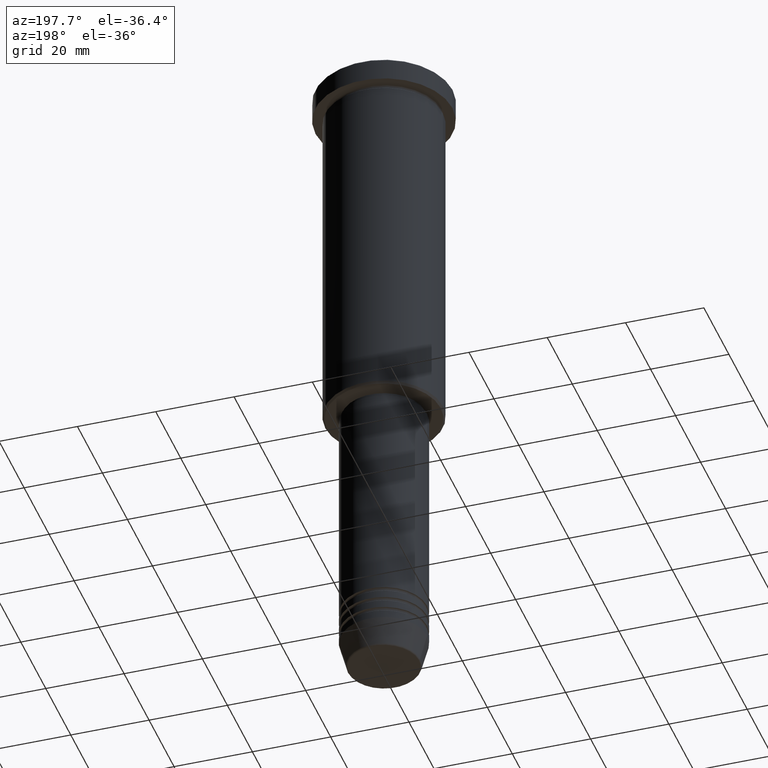
[diagram: clean part render]
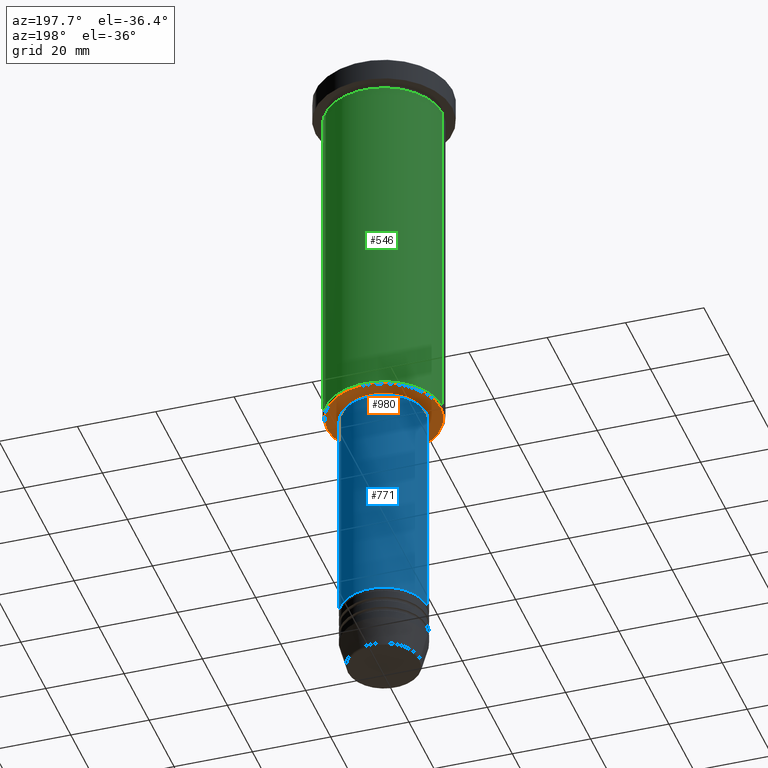
[diagram: same view with three faces highlighted in distinct colors, each labeled with its STEP entity id]
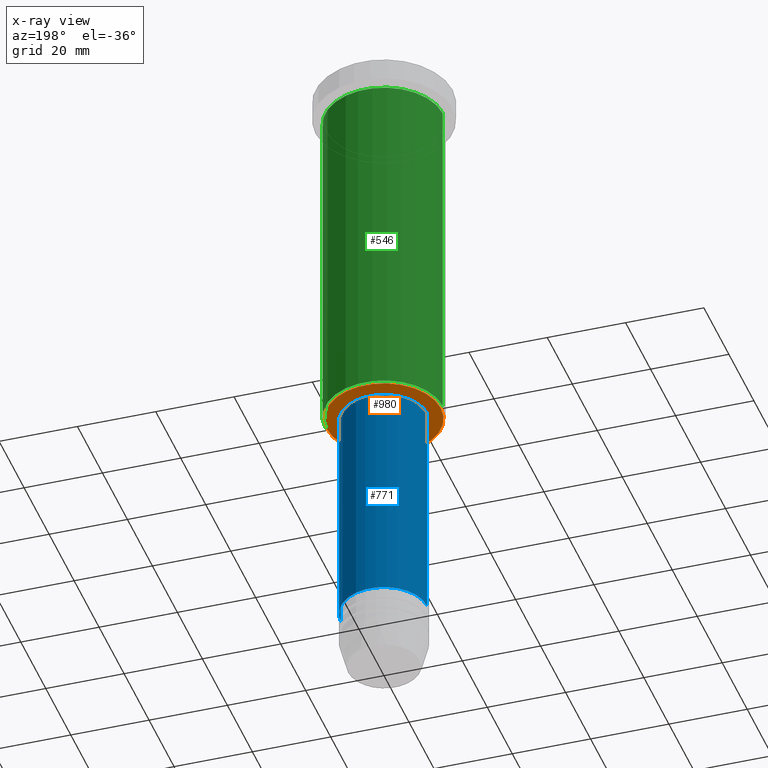
[diagram: x-ray of the same camera — body ghosted, the three highlighted faces saturated]
A machine part, auxiliary view with three faces highlighted in distinct colors.
The next image is the same camera in x-ray (body ghosted, the three faces saturated) — at least one of them is partly hidden behind the body in this view.
Their STEP definitions:

[orange] entity #980 — the highlighted planar face has unit normal (0, 0, -1).
#1 = EDGE_LOOP ( 'NONE', ( #672, #662 ) ) ;
#12 = CARTESIAN_POINT ( 'NONE',  ( 0.000000000000000000, 15.00000000000000000, -96.00000000000000000 ) ) ;
#38 = EDGE_CURVE ( 'NONE', #942, #579, #51, .T. ) ;
#42 = FACE_OUTER_BOUND ( 'NONE', #1, .T. ) ;
#51 = CIRCLE ( 'NONE', #755, 10.49999999999999822 ) ;
#94 = DIRECTION ( 'NONE',  ( 1.000000000000000000, 0.000000000000000000, 0.000000000000000000 ) ) ;
#95 = CARTESIAN_POINT ( 'NONE',  ( 14.50000000000001066, 0.000000000000000000, -96.00000000000000000 ) ) ;
#101 = DIRECTION ( 'NONE',  ( -0.000000000000000000, -0.000000000000000000, 1.000000000000000000 ) ) ;
#176 = EDGE_CURVE ( 'NONE', #661, #357, #504, .T. ) ;
#247 = EDGE_CURVE ( 'NONE', #357, #661, #794, .T. ) ;
#277 = AXIS2_PLACEMENT_3D ( 'NONE', #12, #1030, #489 ) ;
#316 = CARTESIAN_POINT ( 'NONE',  ( 0.000000000000000000, 0.000000000000000000, -96.00000000000000000 ) ) ;
#320 = DIRECTION ( 'NONE',  ( -0.000000000000000000, -0.000000000000000000, 1.000000000000000000 ) ) ;
#325 = AXIS2_PLACEMENT_3D ( 'NONE', #812, #649, #998 ) ;
#357 = VERTEX_POINT ( 'NONE', #95 ) ;
#377 = CARTESIAN_POINT ( 'NONE',  ( -14.50000000000001066, 1.806354028742346591E-15, -96.00000000000000000 ) ) ;
#388 = DIRECTION ( 'NONE',  ( -1.000000000000000000, 0.000000000000000000, 0.000000000000000000 ) ) ;
#394 = DIRECTION ( 'NONE',  ( 1.000000000000000000, 0.000000000000000000, 0.000000000000000000 ) ) ;
#489 = DIRECTION ( 'NONE',  ( -1.000000000000000000, 0.000000000000000000, -0.000000000000000000 ) ) ;
#504 = CIRCLE ( 'NONE', #325, 14.50000000000001066 ) ;
#510 = CARTESIAN_POINT ( 'NONE',  ( 0.000000000000000000, 0.000000000000000000, -96.00000000000000000 ) ) ;
#521 = AXIS2_PLACEMENT_3D ( 'NONE', #510, #320, #394 ) ;
#579 = VERTEX_POINT ( 'NONE', #1090 ) ;
#649 = DIRECTION ( 'NONE',  ( 0.000000000000000000, 0.000000000000000000, -1.000000000000000000 ) ) ;
#661 = VERTEX_POINT ( 'NONE', #377 ) ;
#662 = ORIENTED_EDGE ( 'NONE', *, *, #176, .T. ) ;
#672 = ORIENTED_EDGE ( 'NONE', *, *, #247, .T. ) ;
#673 = ORIENTED_EDGE ( 'NONE', *, *, #38, .T. ) ;
#682 = ORIENTED_EDGE ( 'NONE', *, *, #1149, .T. ) ;
#755 = AXIS2_PLACEMENT_3D ( 'NONE', #1086, #101, #94 ) ;
#767 = FACE_BOUND ( 'NONE', #1041, .T. ) ;
#776 = CIRCLE ( 'NONE', #521, 10.49999999999999822 ) ;
#794 = CIRCLE ( 'NONE', #1103, 14.50000000000001066 ) ;
#812 = CARTESIAN_POINT ( 'NONE',  ( 0.000000000000000000, 0.000000000000000000, -96.00000000000000000 ) ) ;
#873 = DIRECTION ( 'NONE',  ( 0.000000000000000000, 0.000000000000000000, -1.000000000000000000 ) ) ;
#942 = VERTEX_POINT ( 'NONE', #1048 ) ;
#980 = ADVANCED_FACE ( 'NONE', ( #42, #767 ), #1177, .T. ) ;
#998 = DIRECTION ( 'NONE',  ( -1.000000000000000000, 0.000000000000000000, 0.000000000000000000 ) ) ;
#1030 = DIRECTION ( 'NONE',  ( 0.000000000000000000, 0.000000000000000000, -1.000000000000000000 ) ) ;
#1041 = EDGE_LOOP ( 'NONE', ( #682, #673 ) ) ;
#1048 = CARTESIAN_POINT ( 'NONE',  ( -10.49999999999999822, 1.285879139104720633E-15, -96.00000000000000000 ) ) ;
#1086 = CARTESIAN_POINT ( 'NONE',  ( 0.000000000000000000, 0.000000000000000000, -96.00000000000000000 ) ) ;
#1090 = CARTESIAN_POINT ( 'NONE',  ( 10.49999999999999822, 0.000000000000000000, -96.00000000000000000 ) ) ;
#1103 = AXIS2_PLACEMENT_3D ( 'NONE', #316, #873, #388 ) ;
#1149 = EDGE_CURVE ( 'NONE', #579, #942, #776, .T. ) ;
#1177 = PLANE ( 'NONE',  #277 ) ;

[blue] entity #771 — the highlighted cylindrical surface (partial cylindrical patch) has radius 11 mm, axis along (-0, -0, 1).
#4 = ORIENTED_EDGE ( 'NONE', *, *, #219, .F. ) ;
#21 = CARTESIAN_POINT ( 'NONE',  ( 0.000000000000000000, 0.000000000000000000, -97.00000000000000000 ) ) ;
#47 = VECTOR ( 'NONE', #697, 1000.000000000000000 ) ;
#87 = CIRCLE ( 'NONE', #240, 11.00000000000000000 ) ;
#100 = DIRECTION ( 'NONE',  ( -0.000000000000000000, -0.000000000000000000, 1.000000000000000000 ) ) ;
#110 = DIRECTION ( 'NONE',  ( -0.000000000000000000, -0.000000000000000000, 1.000000000000000000 ) ) ;
#202 = DIRECTION ( 'NONE',  ( 1.000000000000000000, 0.000000000000000000, 0.000000000000000000 ) ) ;
#216 = CARTESIAN_POINT ( 'NONE',  ( 0.000000000000000000, 0.000000000000000000, 0.000000000000000000 ) ) ;
#219 = EDGE_CURVE ( 'NONE', #289, #361, #565, .T. ) ;
#235 = CARTESIAN_POINT ( 'NONE',  ( -11.00000000000000000, 1.347111479062088405E-15, 0.000000000000000000 ) ) ;
#240 = AXIS2_PLACEMENT_3D ( 'NONE', #21, #100, #202 ) ;
#289 = VERTEX_POINT ( 'NONE', #908 ) ;
#332 = LINE ( 'NONE', #235, #47 ) ;
#353 = ORIENTED_EDGE ( 'NONE', *, *, #734, .F. ) ;
#361 = VERTEX_POINT ( 'NONE', #915 ) ;
#496 = VERTEX_POINT ( 'NONE', #1142 ) ;
#538 = AXIS2_PLACEMENT_3D ( 'NONE', #1087, #1112, #841 ) ;
#565 = LINE ( 'NONE', #764, #1140 ) ;
#697 = DIRECTION ( 'NONE',  ( -0.000000000000000000, -0.000000000000000000, 1.000000000000000000 ) ) ;
#734 = EDGE_CURVE ( 'NONE', #361, #496, #87, .T. ) ;
#764 = CARTESIAN_POINT ( 'NONE',  ( 11.00000000000000000, 0.000000000000000000, 0.000000000000000000 ) ) ;
#771 = ADVANCED_FACE ( 'NONE', ( #1042 ), #955, .T. ) ;
#773 = AXIS2_PLACEMENT_3D ( 'NONE', #216, #950, #855 ) ;
#841 = DIRECTION ( 'NONE',  ( 1.000000000000000000, 0.000000000000000000, 0.000000000000000000 ) ) ;
#855 = DIRECTION ( 'NONE',  ( 1.000000000000000000, 0.000000000000000000, 0.000000000000000000 ) ) ;
#868 = VERTEX_POINT ( 'NONE', #1134 ) ;
#893 = ORIENTED_EDGE ( 'NONE', *, *, #896, .T. ) ;
#896 = EDGE_CURVE ( 'NONE', #868, #496, #332, .T. ) ;
#908 = CARTESIAN_POINT ( 'NONE',  ( 11.00000000000000000, 0.000000000000000000, -154.9999999999999716 ) ) ;
#915 = CARTESIAN_POINT ( 'NONE',  ( 11.00000000000000000, 0.000000000000000000, -97.00000000000000000 ) ) ;
#938 = ORIENTED_EDGE ( 'NONE', *, *, #1010, .T. ) ;
#950 = DIRECTION ( 'NONE',  ( -0.000000000000000000, -0.000000000000000000, 1.000000000000000000 ) ) ;
#955 = CYLINDRICAL_SURFACE ( 'NONE', #773, 11.00000000000000000 ) ;
#978 = CIRCLE ( 'NONE', #538, 11.00000000000000000 ) ;
#1010 = EDGE_CURVE ( 'NONE', #289, #868, #978, .T. ) ;
#1042 = FACE_OUTER_BOUND ( 'NONE', #1124, .T. ) ;
#1087 = CARTESIAN_POINT ( 'NONE',  ( 0.000000000000000000, 0.000000000000000000, -154.9999999999999716 ) ) ;
#1112 = DIRECTION ( 'NONE',  ( -0.000000000000000000, -0.000000000000000000, 1.000000000000000000 ) ) ;
#1124 = EDGE_LOOP ( 'NONE', ( #938, #893, #353, #4 ) ) ;
#1134 = CARTESIAN_POINT ( 'NONE',  ( -11.00000000000000000, 1.347111479062088405E-15, -154.9999999999999716 ) ) ;
#1140 = VECTOR ( 'NONE', #110, 1000.000000000000000 ) ;
#1142 = CARTESIAN_POINT ( 'NONE',  ( -11.00000000000000000, 1.347111479062088405E-15, -97.00000000000000000 ) ) ;

[green] entity #546 — the highlighted cylindrical surface (partial cylindrical patch) has radius 15 mm, axis along (-0, -0, 1).
#46 = ORIENTED_EDGE ( 'NONE', *, *, #154, .T. ) ;
#50 = VERTEX_POINT ( 'NONE', #1061 ) ;
#104 = DIRECTION ( 'NONE',  ( 1.000000000000000000, 0.000000000000000000, 0.000000000000000000 ) ) ;
#132 = LINE ( 'NONE', #1052, #1032 ) ;
#135 = CARTESIAN_POINT ( 'NONE',  ( 15.00000000000000000, 0.000000000000000000, -95.50000000000001421 ) ) ;
#154 = EDGE_CURVE ( 'NONE', #50, #1009, #132, .T. ) ;
#292 = EDGE_LOOP ( 'NONE', ( #769, #46, #1094, #840 ) ) ;
#338 = FACE_OUTER_BOUND ( 'NONE', #292, .T. ) ;
#374 = CARTESIAN_POINT ( 'NONE',  ( 15.00000000000000000, 0.000000000000000000, 0.000000000000000000 ) ) ;
#409 = VERTEX_POINT ( 'NONE', #135 ) ;
#419 = CARTESIAN_POINT ( 'NONE',  ( 0.000000000000000000, 0.000000000000000000, -95.50000000000001421 ) ) ;
#440 = VECTOR ( 'NONE', #928, 1000.000000000000000 ) ;
#455 = CARTESIAN_POINT ( 'NONE',  ( -15.00000000000000000, 1.836970198721029589E-15, -6.999999999999995559 ) ) ;
#462 = CYLINDRICAL_SURFACE ( 'NONE', #1011, 15.00000000000000000 ) ;
#484 = CIRCLE ( 'NONE', #634, 15.00000000000000000 ) ;
#546 = ADVANCED_FACE ( 'NONE', ( #338 ), #462, .T. ) ;
#573 = DIRECTION ( 'NONE',  ( -0.000000000000000000, -0.000000000000000000, 1.000000000000000000 ) ) ;
#580 = DIRECTION ( 'NONE',  ( -0.000000000000000000, -0.000000000000000000, 1.000000000000000000 ) ) ;
#586 = DIRECTION ( 'NONE',  ( -0.000000000000000000, -0.000000000000000000, 1.000000000000000000 ) ) ;
#634 = AXIS2_PLACEMENT_3D ( 'NONE', #762, #573, #104 ) ;
#640 = DIRECTION ( 'NONE',  ( -0.000000000000000000, -0.000000000000000000, 1.000000000000000000 ) ) ;
#656 = CIRCLE ( 'NONE', #963, 15.00000000000000000 ) ;
#762 = CARTESIAN_POINT ( 'NONE',  ( 0.000000000000000000, 0.000000000000000000, -6.999999999999995559 ) ) ;
#769 = ORIENTED_EDGE ( 'NONE', *, *, #1178, .T. ) ;
#770 = DIRECTION ( 'NONE',  ( -1.000000000000000000, 0.000000000000000000, 0.000000000000000000 ) ) ;
#802 = VERTEX_POINT ( 'NONE', #871 ) ;
#820 = CARTESIAN_POINT ( 'NONE',  ( 0.000000000000000000, 0.000000000000000000, 0.000000000000000000 ) ) ;
#825 = LINE ( 'NONE', #374, #440 ) ;
#834 = DIRECTION ( 'NONE',  ( 1.000000000000000000, 0.000000000000000000, 0.000000000000000000 ) ) ;
#840 = ORIENTED_EDGE ( 'NONE', *, *, #1051, .F. ) ;
#871 = CARTESIAN_POINT ( 'NONE',  ( 15.00000000000000000, 0.000000000000000000, -6.999999999999995559 ) ) ;
#928 = DIRECTION ( 'NONE',  ( -0.000000000000000000, -0.000000000000000000, 1.000000000000000000 ) ) ;
#963 = AXIS2_PLACEMENT_3D ( 'NONE', #419, #586, #770 ) ;
#1009 = VERTEX_POINT ( 'NONE', #455 ) ;
#1011 = AXIS2_PLACEMENT_3D ( 'NONE', #820, #640, #834 ) ;
#1032 = VECTOR ( 'NONE', #580, 1000.000000000000000 ) ;
#1051 = EDGE_CURVE ( 'NONE', #409, #802, #825, .T. ) ;
#1052 = CARTESIAN_POINT ( 'NONE',  ( -15.00000000000000000, 1.836970198721029589E-15, 0.000000000000000000 ) ) ;
#1061 = CARTESIAN_POINT ( 'NONE',  ( -15.00000000000000000, 1.836970198721029589E-15, -95.50000000000001421 ) ) ;
#1094 = ORIENTED_EDGE ( 'NONE', *, *, #1113, .F. ) ;
#1113 = EDGE_CURVE ( 'NONE', #802, #1009, #484, .T. ) ;
#1178 = EDGE_CURVE ( 'NONE', #409, #50, #656, .T. ) ;